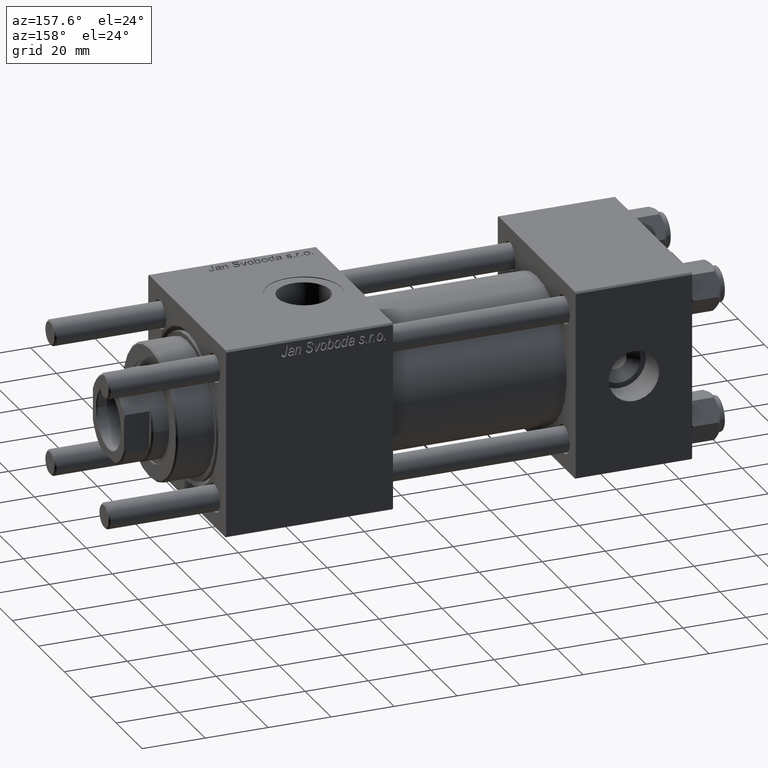
[diagram: clean part render]
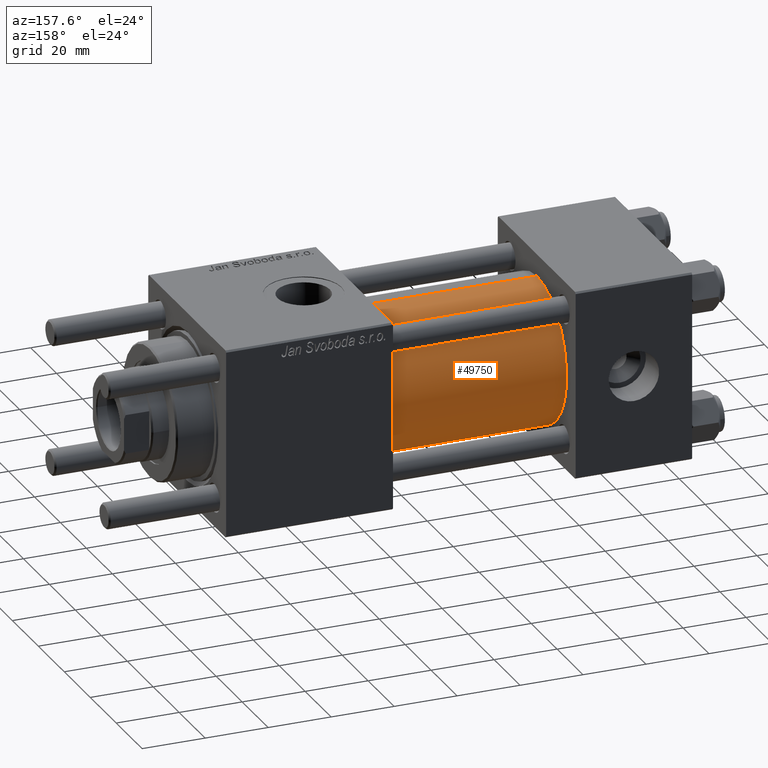
[diagram: same view with one face highlighted and labeled with its STEP entity id]
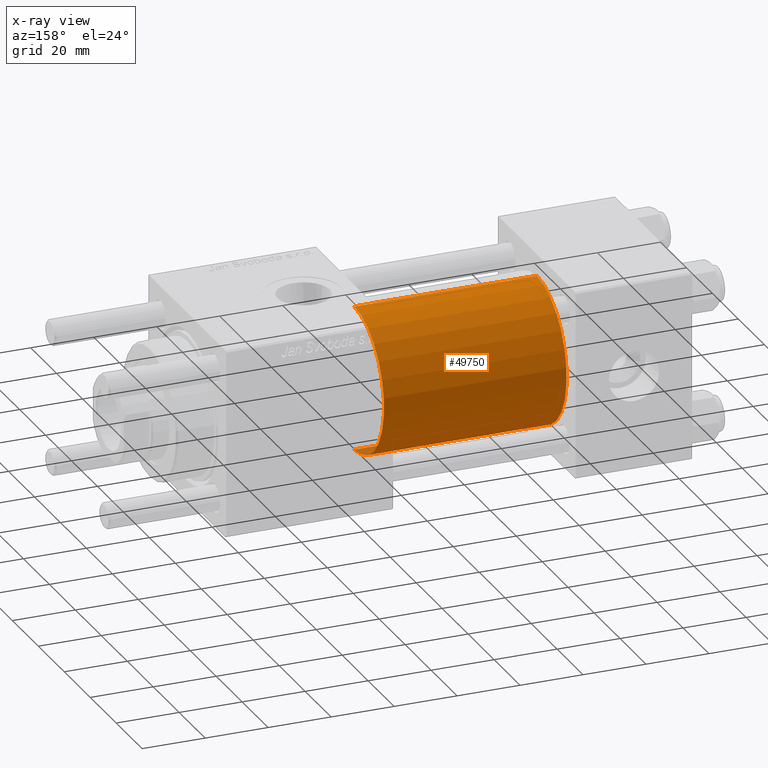
[diagram: x-ray of the same camera — body ghosted, the highlighted face saturated]
A machine part, auxiliary view. The second image highlights one B-rep face of the part: STEP entity #49750.
The next image is the same camera in x-ray: the body ghosted, the highlighted face saturated — about 0% of this face is hidden behind the body in this view.
In plain terms, the highlighted cylindrical surface (partial cylindrical patch) has radius 23 mm, axis along (-1, -0, -0).
Its self-contained STEP definition (entity closure, byte-faithful):
#3219 = EDGE_CURVE ( 'NONE', #21755, #39536, #34825, .T. ) ;
#3352 = VECTOR ( 'NONE', #39209, 1000.000000000000000 ) ;
#4651 = CARTESIAN_POINT ( 'NONE',  ( 37.00000000000000000, -2.602085213965210642E-15, 23.00000000000000000 ) ) ;
#4988 = CARTESIAN_POINT ( 'NONE',  ( 95.00000000000000000, -2.602085213965210642E-15, 0.000000000000000000 ) ) ;
#5311 = CIRCLE ( 'NONE', #39385, 23.00000000000000000 ) ;
#6604 = CARTESIAN_POINT ( 'NONE',  ( 95.00000000000000000, -2.602085213965210642E-15, 0.000000000000000000 ) ) ;
#7028 = CARTESIAN_POINT ( 'NONE',  ( 37.00000000000000000, 2.146024240737012665E-16, -23.00000000000000000 ) ) ;
#7100 = CARTESIAN_POINT ( 'NONE',  ( 37.00000000000000000, -2.602085213965210642E-15, 0.000000000000000000 ) ) ;
#7430 = VERTEX_POINT ( 'NONE', #4651 ) ;
#10275 = AXIS2_PLACEMENT_3D ( 'NONE', #4988, #25102, #47278 ) ;
#11048 = FACE_OUTER_BOUND ( 'NONE', #26007, .T. ) ;
#13785 = VERTEX_POINT ( 'NONE', #7028 ) ;
#17102 = ORIENTED_EDGE ( 'NONE', *, *, #44639, .T. ) ;
#17346 = CARTESIAN_POINT ( 'NONE',  ( 95.00000000000000000, -2.602085213965210642E-15, 23.00000000000000000 ) ) ;
#19282 = VECTOR ( 'NONE', #45878, 1000.000000000000000 ) ;
#19817 = CARTESIAN_POINT ( 'NONE',  ( 95.00000000000000000, 2.146024240737012665E-16, -23.00000000000000000 ) ) ;
#21160 = LINE ( 'NONE', #47182, #3352 ) ;
#21755 = VERTEX_POINT ( 'NONE', #40999 ) ;
#25102 = DIRECTION ( 'NONE',  ( 1.000000000000000000, 0.000000000000000000, 0.000000000000000000 ) ) ;
#25180 = DIRECTION ( 'NONE',  ( 1.000000000000000000, -0.000000000000000000, 0.000000000000000000 ) ) ;
#26007 = EDGE_LOOP ( 'NONE', ( #51413, #32414, #17102, #39965 ) ) ;
#27253 = AXIS2_PLACEMENT_3D ( 'NONE', #6604, #42728, #38589 ) ;
#31467 = EDGE_CURVE ( 'NONE', #21755, #13785, #50887, .T. ) ;
#32414 = ORIENTED_EDGE ( 'NONE', *, *, #31467, .T. ) ;
#34825 = CIRCLE ( 'NONE', #10275, 23.00000000000000000 ) ;
#38589 = DIRECTION ( 'NONE',  ( 0.000000000000000000, 0.000000000000000000, 1.000000000000000000 ) ) ;
#39209 = DIRECTION ( 'NONE',  ( -1.000000000000000000, -0.000000000000000000, -0.000000000000000000 ) ) ;
#39385 = AXIS2_PLACEMENT_3D ( 'NONE', #7100, #25180, #43220 ) ;
#39536 = VERTEX_POINT ( 'NONE', #17346 ) ;
#39965 = ORIENTED_EDGE ( 'NONE', *, *, #41483, .F. ) ;
#40999 = CARTESIAN_POINT ( 'NONE',  ( 95.00000000000000000, 2.146024240737012665E-16, -23.00000000000000000 ) ) ;
#41483 = EDGE_CURVE ( 'NONE', #39536, #7430, #21160, .T. ) ;
#42728 = DIRECTION ( 'NONE',  ( -1.000000000000000000, -0.000000000000000000, -0.000000000000000000 ) ) ;
#43220 = DIRECTION ( 'NONE',  ( 0.000000000000000000, 0.000000000000000000, 1.000000000000000000 ) ) ;
#44639 = EDGE_CURVE ( 'NONE', #13785, #7430, #5311, .T. ) ;
#45878 = DIRECTION ( 'NONE',  ( -1.000000000000000000, -0.000000000000000000, -0.000000000000000000 ) ) ;
#47156 = CYLINDRICAL_SURFACE ( 'NONE', #27253, 23.00000000000000000 ) ;
#47182 = CARTESIAN_POINT ( 'NONE',  ( 95.00000000000000000, -2.602085213965210642E-15, 23.00000000000000000 ) ) ;
#47278 = DIRECTION ( 'NONE',  ( 0.000000000000000000, 0.000000000000000000, -1.000000000000000000 ) ) ;
#49750 = ADVANCED_FACE ( 'NONE', ( #11048 ), #47156, .T. ) ;
#50887 = LINE ( 'NONE', #19817, #19282 ) ;
#51413 = ORIENTED_EDGE ( 'NONE', *, *, #3219, .F. ) ;